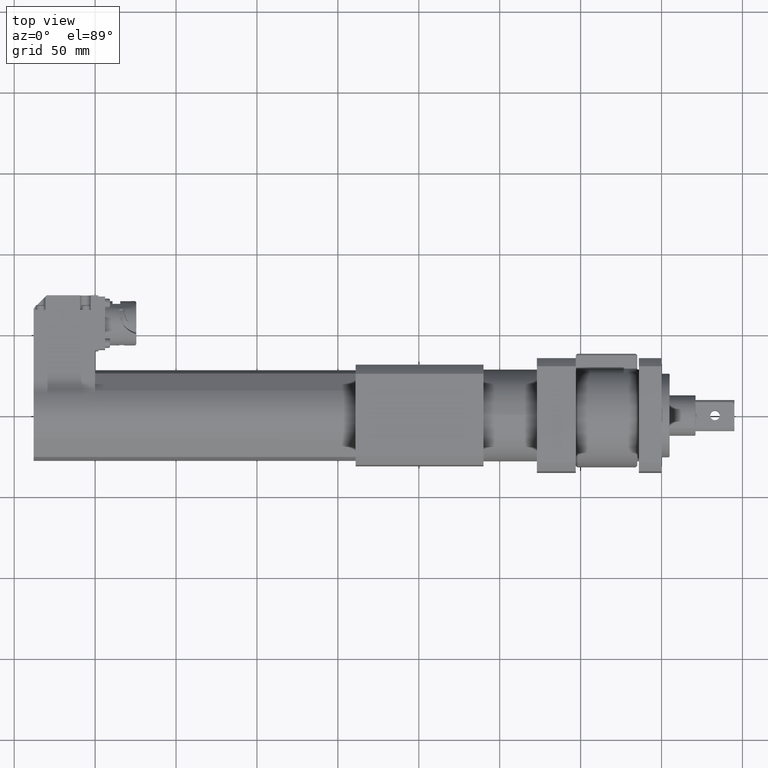
[diagram: clean part render]
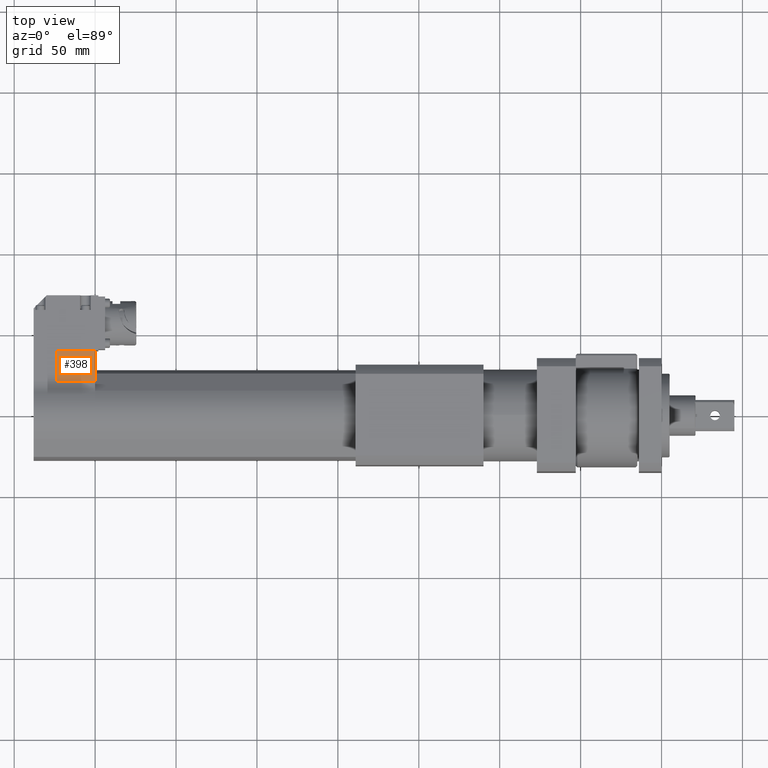
[diagram: same view with one face highlighted and labeled with its STEP entity id]
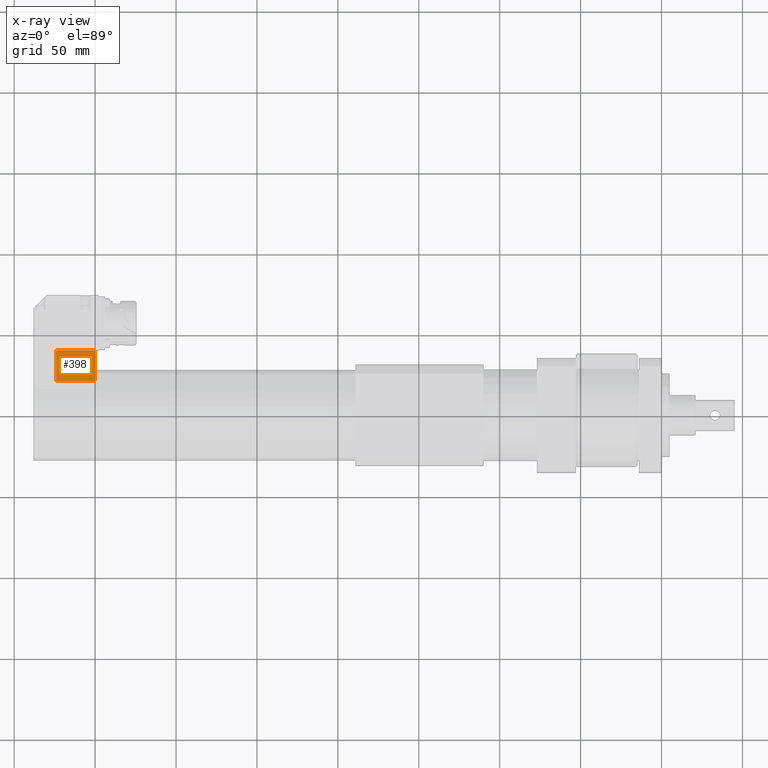
[diagram: x-ray of the same camera — body ghosted, the highlighted face saturated]
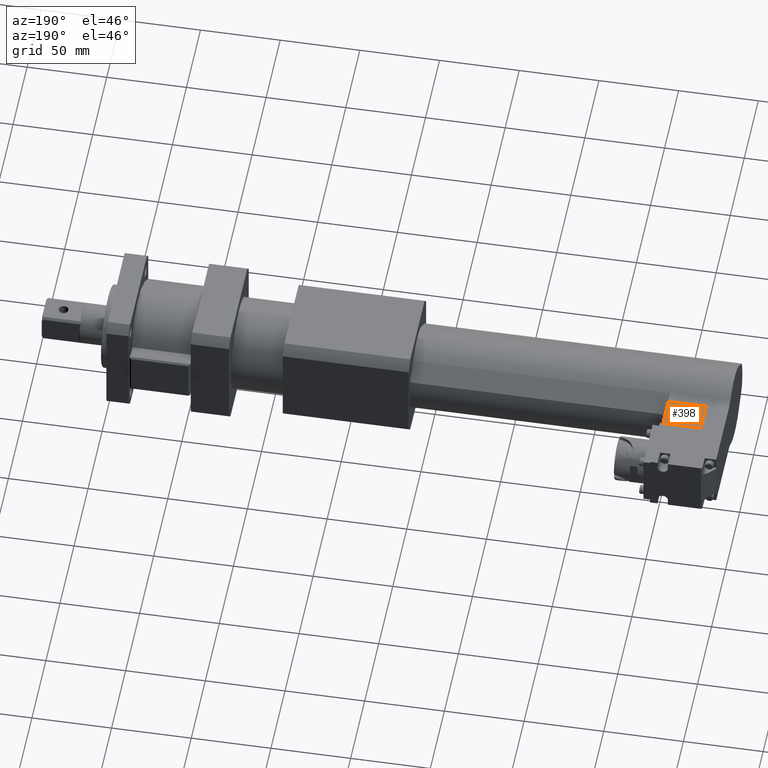
[diagram: same view with one face highlighted and labeled with its STEP entity id]
A machine part, top view. The second image highlights one B-rep face of the part: STEP entity #398.
The next image is the same camera in x-ray: the body ghosted, the highlighted face saturated — about 0% of this face is hidden behind the body in this view.
A second angle (auxiliary view) of the same face is appended — the face is thin or edge-on in the first view.
In plain terms, the highlighted planar face has unit normal (0, -0, -1).
Its self-contained STEP definition (entity closure, byte-faithful):
#151 = VERTEX_POINT ( 'NONE', #8525 ) ;
#171 = FACE_OUTER_BOUND ( 'NONE', #3155, .T. ) ;
#398 = ADVANCED_FACE ( 'NONE', ( #171 ), #7065, .F. ) ;
#834 = EDGE_CURVE ( 'NONE', #2434, #6905, #1040, .T. ) ;
#1040 = LINE ( 'NONE', #7881, #4508 ) ;
#1729 = CARTESIAN_POINT ( 'NONE',  ( -374.0000000000000000, 40.00000000000000000, 17.99999999999999600 ) ) ;
#2377 = CARTESIAN_POINT ( 'NONE',  ( -374.0000000000000000, 20.79062288629176800, 18.00000000000000000 ) ) ;
#2434 = VERTEX_POINT ( 'NONE', #2377 ) ;
#2569 = LINE ( 'NONE', #7290, #4429 ) ;
#2574 = AXIS2_PLACEMENT_3D ( 'NONE', #4172, #4032, #7422 ) ;
#2675 = VERTEX_POINT ( 'NONE', #3287 ) ;
#2917 = EDGE_CURVE ( 'NONE', #6905, #151, #7106, .T. ) ;
#3038 = LINE ( 'NONE', #4867, #8189 ) ;
#3086 = DIRECTION ( 'NONE',  ( -0.0000000000000000000, 1.000000000000000000, -1.492597781526359900E-016 ) ) ;
#3155 = EDGE_LOOP ( 'NONE', ( #6352, #8116, #4060, #4725 ) ) ;
#3287 = CARTESIAN_POINT ( 'NONE',  ( -350.0000000000000000, 20.79062288629176800, 18.00000000000000000 ) ) ;
#4032 = DIRECTION ( 'NONE',  ( 0.0000000000000000000, -1.492597781526359900E-016, -1.000000000000000000 ) ) ;
#4060 = ORIENTED_EDGE ( 'NONE', *, *, #8439, .T. ) ;
#4172 = CARTESIAN_POINT ( 'NONE',  ( -374.0000000000000000, 40.00000000000000000, 17.99999999999999600 ) ) ;
#4429 = VECTOR ( 'NONE', #3086, 1000.000000000000000 ) ;
#4508 = VECTOR ( 'NONE', #8981, 1000.000000000000000 ) ;
#4725 = ORIENTED_EDGE ( 'NONE', *, *, #2917, .F. ) ;
#4859 = EDGE_CURVE ( 'NONE', #2434, #2675, #3038, .T. ) ;
#4867 = CARTESIAN_POINT ( 'NONE',  ( -350.0000000000000000, 20.79062288629176800, 18.00000000000000000 ) ) ;
#6267 = DIRECTION ( 'NONE',  ( 1.000000000000000000, -0.0000000000000000000, -0.0000000000000000000 ) ) ;
#6352 = ORIENTED_EDGE ( 'NONE', *, *, #834, .F. ) ;
#6635 = DIRECTION ( 'NONE',  ( 1.000000000000000000, -0.0000000000000000000, -0.0000000000000000000 ) ) ;
#6881 = VECTOR ( 'NONE', #6635, 1000.000000000000000 ) ;
#6905 = VERTEX_POINT ( 'NONE', #8788 ) ;
#7065 = PLANE ( 'NONE',  #2574 ) ;
#7106 = LINE ( 'NONE', #1729, #6881 ) ;
#7290 = CARTESIAN_POINT ( 'NONE',  ( -350.0000000000000000, 40.00000000000000000, 17.99999999999999600 ) ) ;
#7422 = DIRECTION ( 'NONE',  ( 0.0000000000000000000, 1.000000000000000000, -1.492597781526359900E-016 ) ) ;
#7881 = CARTESIAN_POINT ( 'NONE',  ( -374.0000000000000000, 40.00000000000000000, 17.99999999999999600 ) ) ;
#8116 = ORIENTED_EDGE ( 'NONE', *, *, #4859, .T. ) ;
#8189 = VECTOR ( 'NONE', #6267, 1000.000000000000000 ) ;
#8439 = EDGE_CURVE ( 'NONE', #2675, #151, #2569, .T. ) ;
#8525 = CARTESIAN_POINT ( 'NONE',  ( -350.0000000000000000, 40.00000000000000000, 17.99999999999999600 ) ) ;
#8788 = CARTESIAN_POINT ( 'NONE',  ( -374.0000000000000000, 40.00000000000000000, 17.99999999999999600 ) ) ;
#8981 = DIRECTION ( 'NONE',  ( -0.0000000000000000000, 1.000000000000000000, -1.492597781526359900E-016 ) ) ;